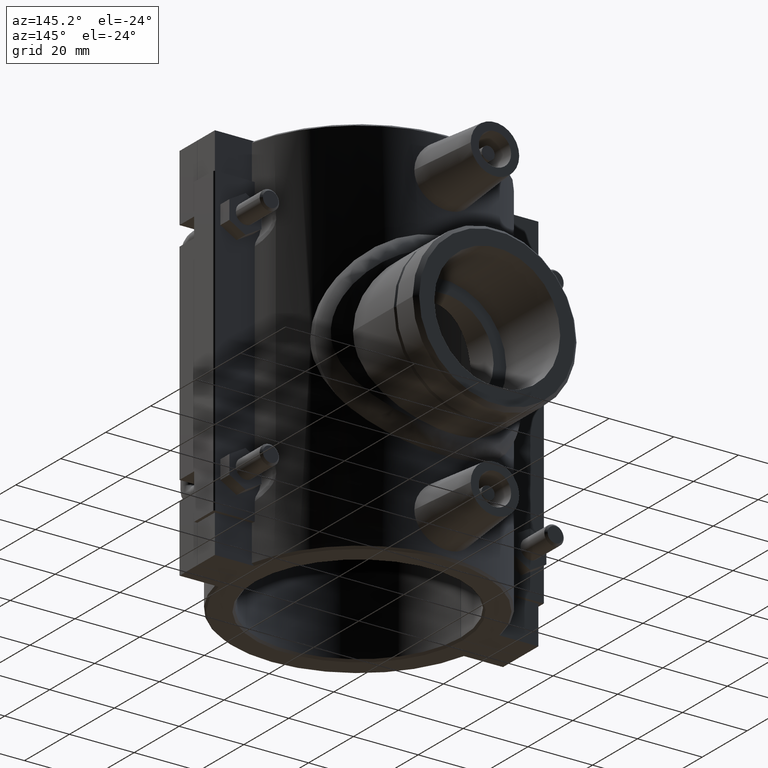
[diagram: clean part render]
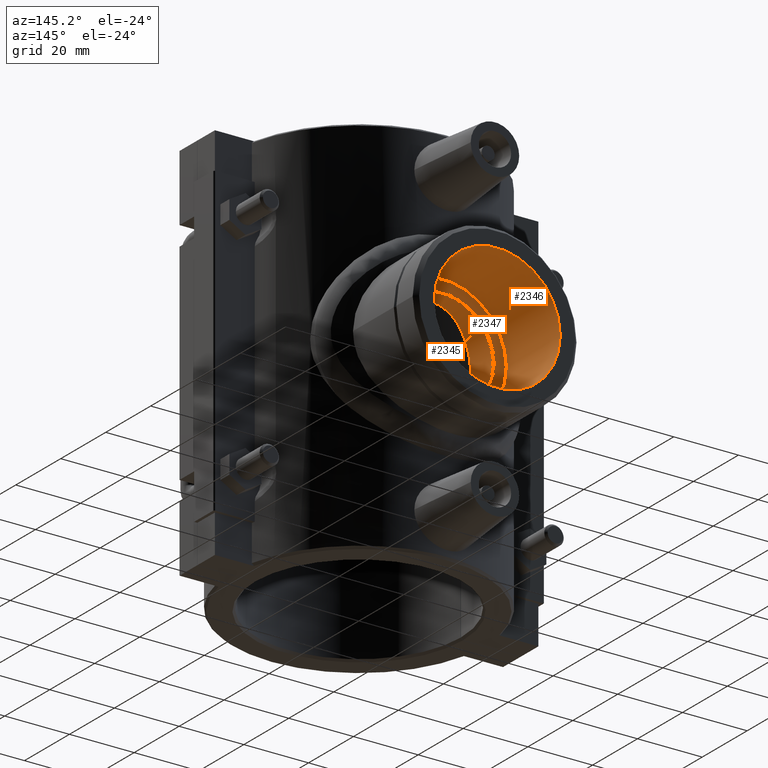
[diagram: same view with one multi-face feature highlighted, each face labeled with its STEP entity id]
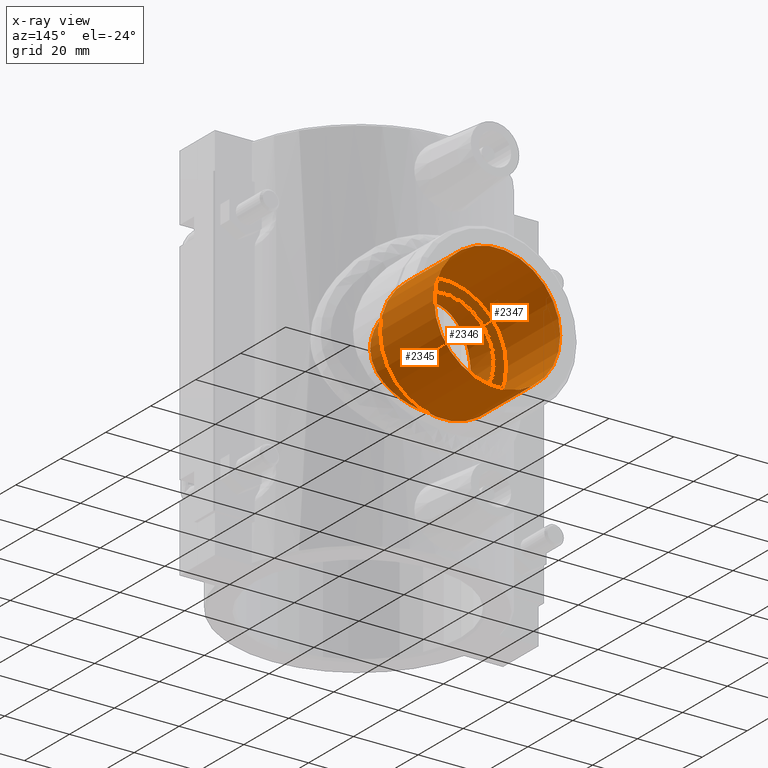
[diagram: x-ray of the same camera — body ghosted, the whole feature saturated]
A machine part, auxiliary view. The highlighted faces form ONE feature: a stepped (counterbored) hole: 2 coaxial cylindrical walls of radii 15.5808 -> 19.476 mm joined by 1 annular planar shoulder face(s). The faces share edges in the B-rep.
The next image is the same camera in x-ray: the body ghosted and the whole hole feature saturated, so the bore chain is visible through the body.
Their STEP definitions:
[1] entity #2346 (Cylinder):
#78=CYLINDRICAL_SURFACE('',#2548,19.476);
#131=FACE_BOUND('',#465,.T.);
#282=FACE_OUTER_BOUND('',#464,.T.);
#464=EDGE_LOOP('',(#2004));
#465=EDGE_LOOP('',(#2005));
#949=CIRCLE('',#2538,19.476);
#954=CIRCLE('',#2549,19.476);
#1154=VERTEX_POINT('',#4300);
#1164=VERTEX_POINT('',#4403);
#1450=EDGE_CURVE('',#1154,#1154,#949,.T.);
#1460=EDGE_CURVE('',#1164,#1164,#954,.T.);
#2004=ORIENTED_EDGE('',*,*,#1460,.T.);
#2005=ORIENTED_EDGE('',*,*,#1450,.F.);
#2346=ADVANCED_FACE('',(#282,#131),#78,.F.);
#2538=AXIS2_PLACEMENT_3D('',#4301,#3068,#3069);
#2548=AXIS2_PLACEMENT_3D('',#4402,#3088,#3089);
#2549=AXIS2_PLACEMENT_3D('',#4404,#3090,#3091);
#3068=DIRECTION('center_axis',(0.,-1.,0.));
#3069=DIRECTION('ref_axis',(-1.,0.,0.));
#3088=DIRECTION('center_axis',(0.,-1.,0.));
#3089=DIRECTION('ref_axis',(-1.,0.,0.));
#3090=DIRECTION('center_axis',(0.,-1.,0.));
#3091=DIRECTION('ref_axis',(-1.,0.,0.));
#4300=CARTESIAN_POINT('',(19.476,61.5,-2.38512210601939E-15));
#4301=CARTESIAN_POINT('Origin',(0.,61.5,0.));
#4402=CARTESIAN_POINT('Origin',(0.,61.5,0.));
#4403=CARTESIAN_POINT('',(19.476,37.5,-2.38512210601939E-15));
#4404=CARTESIAN_POINT('Origin',(0.,37.5,0.));
[2] entity #2345 (Cylinder):
#77=CYLINDRICAL_SURFACE('',#2546,15.5808);
#130=FACE_BOUND('',#463,.T.);
#162=B_SPLINE_CURVE_WITH_KNOTS('',3,(#4167,#4168,#4169,#4170,#4171,#4172,
#4173,#4174,#4175,#4176,#4177,#4178,#4179,#4180,#4181,#4182,#4183,#4184,
#4185,#4186,#4187,#4188,#4189,#4190,#4191,#4192,#4193,#4194,#4195,#4196,
#4197,#4198,#4199,#4200,#4201,#4202,#4203,#4204,#4205,#4206,#4207,#4208,
#4209,#4210,#4211,#4212,#4213,#4214,#4215,#4216),.UNSPECIFIED.,.T.,.F.,
(4,2,2,2,2,2,2,2,2,2,2,2,2,2,2,2,2,2,2,2,2,2,2,2,4),(0.,0.29969706028761,
0.599394120575219,1.19878824115044,1.79662696151982,2.09554632170452,2.39446568188921,
2.6933850420739,2.9923044022586,3.59014312262798,4.1895372432032,4.48923430349081,
4.78893136377842,5.08862842406603,5.38832548435364,5.98771960492886,6.58555832529825,
6.88447768548294,7.18339704566763,7.48231640585233,7.78123576603702,8.37907448640641,
8.97846860698163,9.27816566726924,9.57786272755684),.UNSPECIFIED.);
#281=FACE_OUTER_BOUND('',#462,.T.);
#462=EDGE_LOOP('',(#2002));
#463=EDGE_LOOP('',(#2003));
#953=CIRCLE('',#2547,15.5808);
#1132=VERTEX_POINT('',#4166);
#1163=VERTEX_POINT('',#4400);
#1417=EDGE_CURVE('',#1132,#1132,#162,.T.);
#1459=EDGE_CURVE('',#1163,#1163,#953,.T.);
#2002=ORIENTED_EDGE('',*,*,#1417,.F.);
#2003=ORIENTED_EDGE('',*,*,#1459,.F.);
#2345=ADVANCED_FACE('',(#281,#130),#77,.F.);
#2546=AXIS2_PLACEMENT_3D('',#4399,#3084,#3085);
#2547=AXIS2_PLACEMENT_3D('',#4401,#3086,#3087);
#3084=DIRECTION('center_axis',(0.,-1.,0.));
#3085=DIRECTION('ref_axis',(-1.,0.,0.));
#3086=DIRECTION('center_axis',(0.,-1.,0.));
#3087=DIRECTION('ref_axis',(-1.,0.,0.));
#4166=CARTESIAN_POINT('',(15.5808,27.376790742525,-2.77555756156289E-16));
#4167=CARTESIAN_POINT('Ctrl Pts',(15.5808,27.376790742525,-2.77555756156289E-16));
#4168=CARTESIAN_POINT('Ctrl Pts',(15.5808,27.376790742525,-0.998990200958699));
#4169=CARTESIAN_POINT('Ctrl Pts',(15.4832103281551,27.4330705631785,-2.02489298320803));
#4170=CARTESIAN_POINT('Ctrl Pts',(15.079970267284,27.6567832385025,-4.05271398422366));
#4171=CARTESIAN_POINT('Ctrl Pts',(14.7744836635446,27.8238487575704,-5.05470527681853));
#4172=CARTESIAN_POINT('Ctrl Pts',(13.5750058040125,28.4390014413097,-7.92319600086197));
#4173=CARTESIAN_POINT('Ctrl Pts',(12.3832789174011,29.0005241574122,-9.65129975522165));
#4174=CARTESIAN_POINT('Ctrl Pts',(9.65484443542898,30.0191431866305,-12.3797342371937));
#4175=CARTESIAN_POINT('Ctrl Pts',(7.92553645059862,30.54900026217,-13.574067514916));
#4176=CARTESIAN_POINT('Ctrl Pts',(5.05312923040034,31.1073507706234,-14.7751225008644));
#4177=CARTESIAN_POINT('Ctrl Pts',(4.04980555712542,31.2551957899884,-15.0807670336925));
#4178=CARTESIAN_POINT('Ctrl Pts',(2.02145921432449,31.4515801124207,-15.4836740479788));
#4179=CARTESIAN_POINT('Ctrl Pts',(0.99639786728231,31.5,-15.5808));
#4180=CARTESIAN_POINT('Ctrl Pts',(-0.996397867282312,31.5,-15.5808));
#4181=CARTESIAN_POINT('Ctrl Pts',(-2.02145921432449,31.4515801124207,-15.4836740479788));
#4182=CARTESIAN_POINT('Ctrl Pts',(-4.04980555712542,31.2551957899884,-15.0807670336925));
#4183=CARTESIAN_POINT('Ctrl Pts',(-5.05312923040034,31.1073507706234,-14.7751225008644));
#4184=CARTESIAN_POINT('Ctrl Pts',(-7.92553645059862,30.54900026217,-13.574067514916));
#4185=CARTESIAN_POINT('Ctrl Pts',(-9.65484443542898,30.0191431866305,-12.3797342371937));
#4186=CARTESIAN_POINT('Ctrl Pts',(-12.3832789174011,29.0005241574122,-9.65129975522165));
#4187=CARTESIAN_POINT('Ctrl Pts',(-13.5750058040125,28.4390014413097,-7.92319600086197));
#4188=CARTESIAN_POINT('Ctrl Pts',(-14.7744836635446,27.8238487575704,-5.05470527681853));
#4189=CARTESIAN_POINT('Ctrl Pts',(-15.079970267284,27.6567832385025,-4.05271398422366));
#4190=CARTESIAN_POINT('Ctrl Pts',(-15.4832103281551,27.4330705631785,-2.02489298320803));
#4191=CARTESIAN_POINT('Ctrl Pts',(-15.5808,27.376790742525,-0.998990200958699));
#4192=CARTESIAN_POINT('Ctrl Pts',(-15.5808,27.376790742525,0.998990200958699));
#4193=CARTESIAN_POINT('Ctrl Pts',(-15.4832103281551,27.4330705631785,2.02489298320803));
#4194=CARTESIAN_POINT('Ctrl Pts',(-15.079970267284,27.6567832385025,4.05271398422366));
#4195=CARTESIAN_POINT('Ctrl Pts',(-14.7744836635446,27.8238487575704,5.05470527681853));
#4196=CARTESIAN_POINT('Ctrl Pts',(-13.5750058040125,28.4390014413097,7.92319600086197));
#4197=CARTESIAN_POINT('Ctrl Pts',(-12.3832789174011,29.0005241574122,9.65129975522165));
#4198=CARTESIAN_POINT('Ctrl Pts',(-9.65484443542898,30.0191431866305,12.3797342371937));
#4199=CARTESIAN_POINT('Ctrl Pts',(-7.92553645059862,30.54900026217,13.574067514916));
#4200=CARTESIAN_POINT('Ctrl Pts',(-5.05312923040033,31.1073507706234,14.7751225008644));
#4201=CARTESIAN_POINT('Ctrl Pts',(-4.04980555712542,31.2551957899884,15.0807670336925));
#4202=CARTESIAN_POINT('Ctrl Pts',(-2.02145921432449,31.4515801124207,15.4836740479788));
#4203=CARTESIAN_POINT('Ctrl Pts',(-0.996397867282312,31.5,15.5808));
#4204=CARTESIAN_POINT('Ctrl Pts',(0.99639786728231,31.5,15.5808));
#4205=CARTESIAN_POINT('Ctrl Pts',(2.02145921432448,31.4515801124207,15.4836740479788));
#4206=CARTESIAN_POINT('Ctrl Pts',(4.04980555712542,31.2551957899884,15.0807670336925));
#4207=CARTESIAN_POINT('Ctrl Pts',(5.05312923040033,31.1073507706234,14.7751225008644));
#4208=CARTESIAN_POINT('Ctrl Pts',(7.92553645059862,30.54900026217,13.574067514916));
#4209=CARTESIAN_POINT('Ctrl Pts',(9.65484443542898,30.0191431866305,12.3797342371937));
#4210=CARTESIAN_POINT('Ctrl Pts',(12.3832789174011,29.0005241574122,9.65129975522165));
#4211=CARTESIAN_POINT('Ctrl Pts',(13.5750058040125,28.4390014413097,7.92319600086197));
#4212=CARTESIAN_POINT('Ctrl Pts',(14.7744836635446,27.8238487575704,5.05470527681853));
#4213=CARTESIAN_POINT('Ctrl Pts',(15.079970267284,27.6567832385025,4.05271398422366));
#4214=CARTESIAN_POINT('Ctrl Pts',(15.4832103281551,27.4330705631785,2.02489298320803));
#4215=CARTESIAN_POINT('Ctrl Pts',(15.5808,27.376790742525,0.998990200958699));
#4216=CARTESIAN_POINT('Ctrl Pts',(15.5808,27.376790742525,2.77555756156289E-16));
#4399=CARTESIAN_POINT('Origin',(0.,37.5,0.));
#4400=CARTESIAN_POINT('',(15.5808,37.5,-1.90809768481551E-15));
#4401=CARTESIAN_POINT('Origin',(0.,37.5,0.));
[3] entity #2347 (Plane):
#132=FACE_BOUND('',#467,.T.);
#283=FACE_OUTER_BOUND('',#466,.T.);
#466=EDGE_LOOP('',(#2006));
#467=EDGE_LOOP('',(#2007));
#953=CIRCLE('',#2547,15.5808);
#954=CIRCLE('',#2549,19.476);
#1163=VERTEX_POINT('',#4400);
#1164=VERTEX_POINT('',#4403);
#1459=EDGE_CURVE('',#1163,#1163,#953,.T.);
#1460=EDGE_CURVE('',#1164,#1164,#954,.T.);
#2006=ORIENTED_EDGE('',*,*,#1460,.F.);
#2007=ORIENTED_EDGE('',*,*,#1459,.T.);
#2222=PLANE('',#2550);
#2347=ADVANCED_FACE('',(#283,#132),#2222,.T.);
#2547=AXIS2_PLACEMENT_3D('',#4401,#3086,#3087);
#2549=AXIS2_PLACEMENT_3D('',#4404,#3090,#3091);
#2550=AXIS2_PLACEMENT_3D('',#4405,#3092,#3093);
#3086=DIRECTION('center_axis',(0.,-1.,0.));
#3087=DIRECTION('ref_axis',(-1.,0.,0.));
#3090=DIRECTION('center_axis',(0.,-1.,0.));
#3091=DIRECTION('ref_axis',(-1.,0.,0.));
#3092=DIRECTION('center_axis',(0.,1.,0.));
#3093=DIRECTION('ref_axis',(0.,0.,1.));
#4400=CARTESIAN_POINT('',(15.5808,37.5,-1.90809768481551E-15));
#4401=CARTESIAN_POINT('Origin',(0.,37.5,0.));
#4403=CARTESIAN_POINT('',(19.476,37.5,-2.38512210601939E-15));
#4404=CARTESIAN_POINT('Origin',(0.,37.5,0.));
#4405=CARTESIAN_POINT('Origin',(-9.58822491257867E-16,37.5,-3.80031157878126E-16));